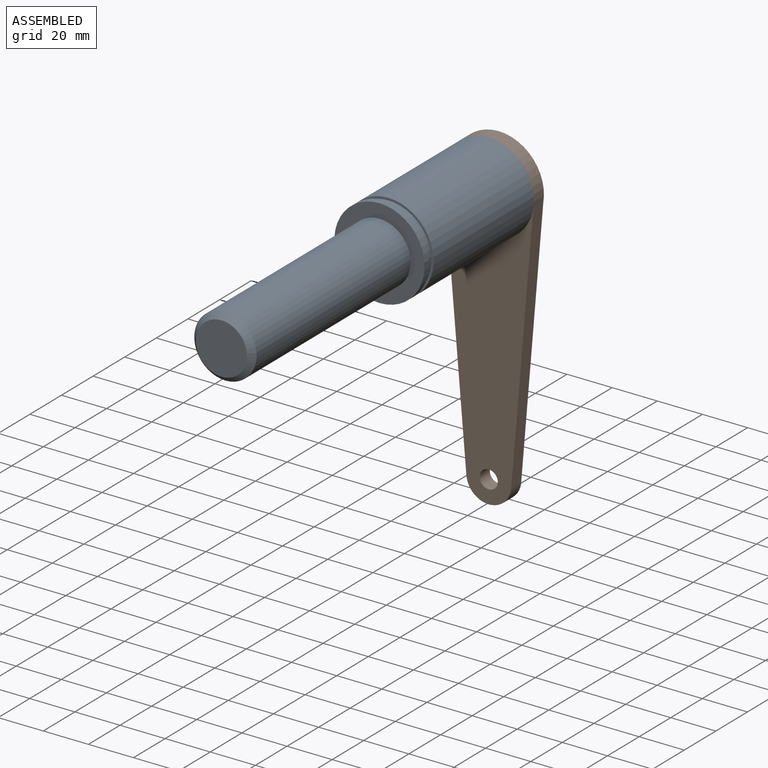
[diagram: assembled view]
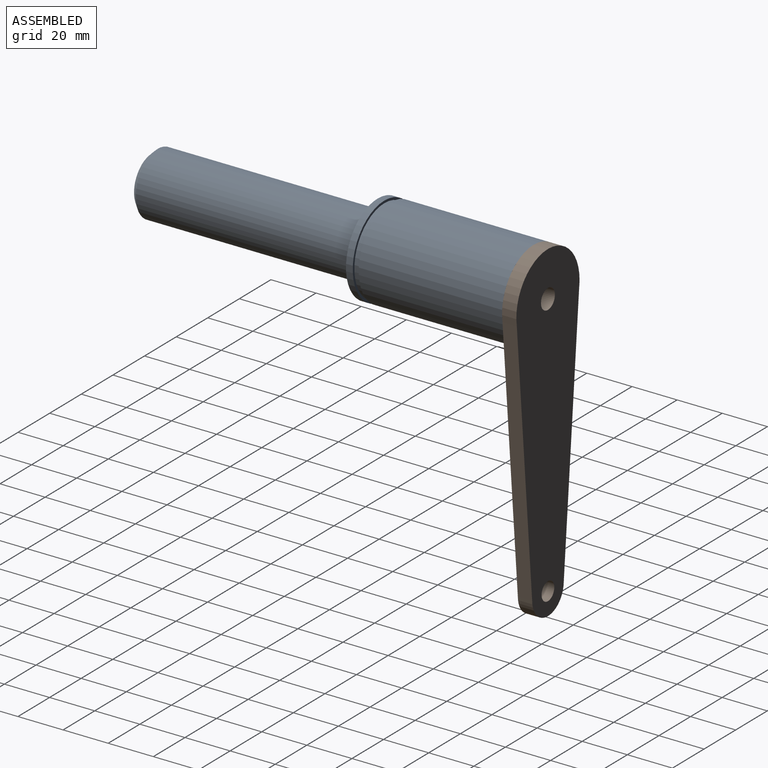
[diagram: assembled view, second angle]
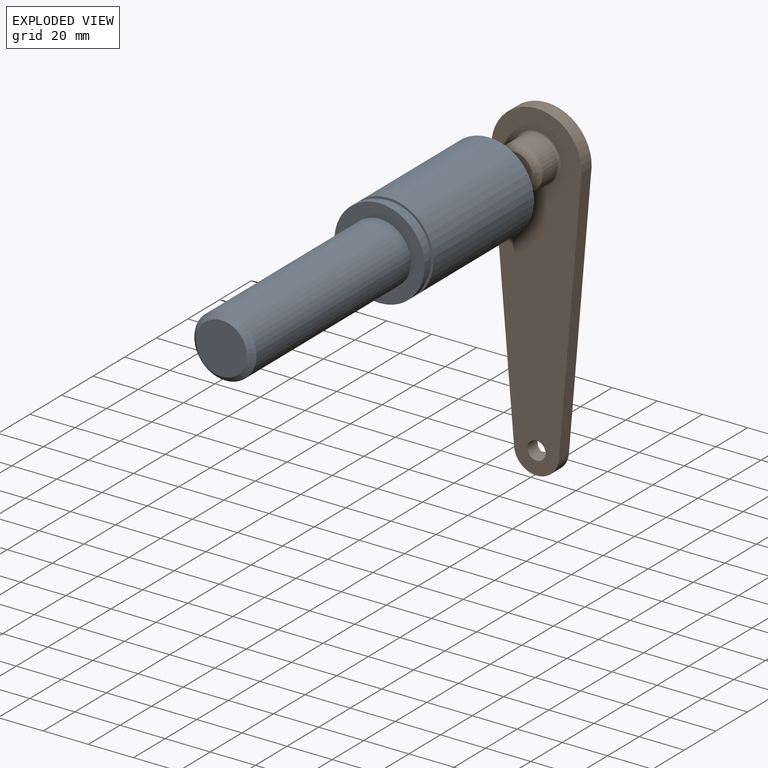
[diagram: exploded view]
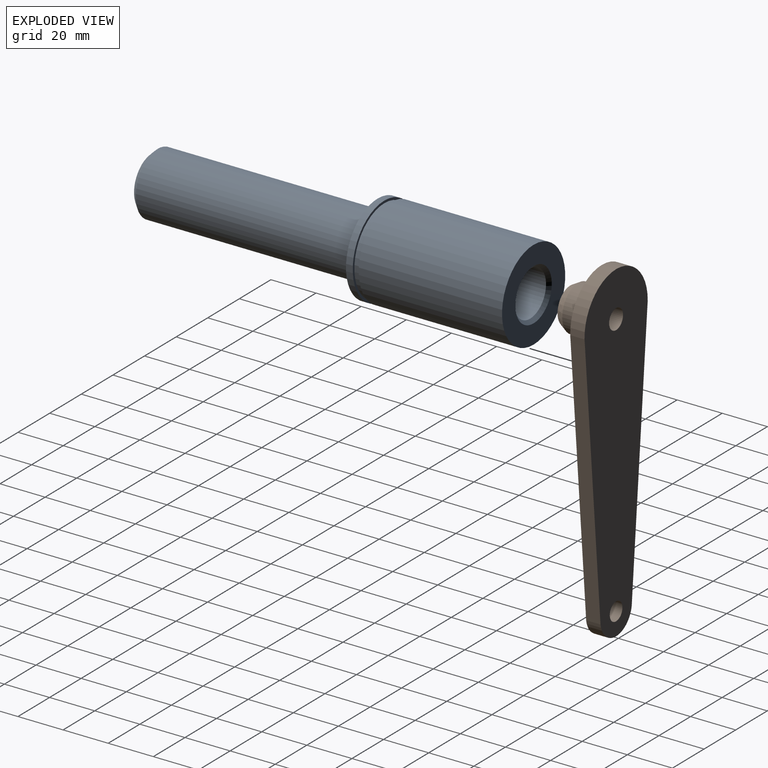
[diagram: exploded view, second angle]
ASSEMBLY  parts=2 mates=2
PART A: 15 faces, bbox 40x169.2x40 mm
  f0: plane 22.6x22.6mm, normal (0,-1,0), area 401.1mm2, adj f14
  f1: plane 20x20mm, normal (0,1,0), area 277.8mm2, adj f2,f13
  f2: cylinder r=10mm len=20mm, axis (0,-1,0), area 848.2mm2, adj f1,f11
  f3: plane 40x40mm, normal (0,1,0), area 841.2mm2, adj f4,f11
  f4: cylinder r=20mm len=63.5mm, axis (0,-1,0), area 7979.6mm2, adj f3,f5
  f5: plane 40x40mm, normal (0,-1,0), area 127.5mm2, adj f4,f6
  f6: cylinder r=18.96mm len=37.92mm, axis (0,-1,0), area 315.7mm2, adj f5,f7
  f7: plane 40x40mm, normal (0,1,0), area 127.5mm2, adj f6,f8
  f8: cylinder r=20mm len=40mm, axis (0,-1,0), area 377mm2, adj f7,f9
  f9: plane 40x40mm, normal (0,-1,0), area 658.4mm2, adj f8,f10
  f10: cylinder r=13.8mm len=97.5mm, axis (0,-1,0), area 8454mm2, adj f9,f14
  f11: cone r=11.5mm half-angle=45deg, axis (0,1,0), area 143.3mm2, adj f2,f3
  f12: cone r=0mm half-angle=59deg, axis (0,1,0), area 42.4mm2, adj f13
  f13: cylinder r=3.4mm len=15.75mm, axis (0,1,0), area 336.5mm2, adj f1,f12
  f14: cone r=11.3mm half-angle=45deg, axis (0,1,0), area 278.8mm2, adj f0,f10
PART B: 12 faces, bbox 40x147.1x20.4 mm
  f0: cylinder r=20mm len=40mm, axis (0,0,-1), area 442.3mm2, adj f1,f3,f4,f5
  f1: plane 113.66x9.71mm, normal (1,0.09,0), area 724.4mm2, adj f0,f2,f4,f5
  f2: cylinder r=10mm len=20mm, axis (0,0,-1), area 199.5mm2, adj f1,f3,f4,f5
  f3: plane 113.66x9.71mm, normal (-1,0.09,0), area 724.4mm2, adj f0,f2,f4,f5
  f4: plane 147.05x40mm, normal (0,0,1), area 4186.1mm2, adj f0,f1,f2,f3,f6,f11
  f5: plane 147.05x40mm, normal (0,0,-1), area 3866.8mm2, adj f0,f1,f2,f3,f6,f9
  f6: cylinder r=4mm len=8mm, axis (0,0,1), area 159.6mm2, adj f4,f5
  f7: cylinder r=10mm len=20mm, axis (0,0,1), area 599.2mm2, adj f9,f10
  f8: plane 16x16mm, normal (0,0,-1), area 140.2mm2, adj f10,f11
  f9: torus R=11mm, axis (0,0,1), area 102.3mm2, adj f5,f7
  f10: cone r=8mm half-angle=30deg, axis (0,0,1), area 226.2mm2, adj f7,f8
  f11: cylinder r=4.4mm len=20.35mm, axis (0,0,1), area 562.6mm2, adj f4,f8
PLACE A t=(5.12,-6.01,-11.13)mm fixed
PLACE B rot(axis=(-1,0,0),90deg) t=(5.12,86.06,-69.66)mm
MATE planar B.f5 <-> A.f2  axis (0,-1,0) through (24.83,86.06,-14.53)mm
MATE slider B.f0 <-> A.f2  axis (0,1,0) through (5.12,80.29,-11.13)mm
